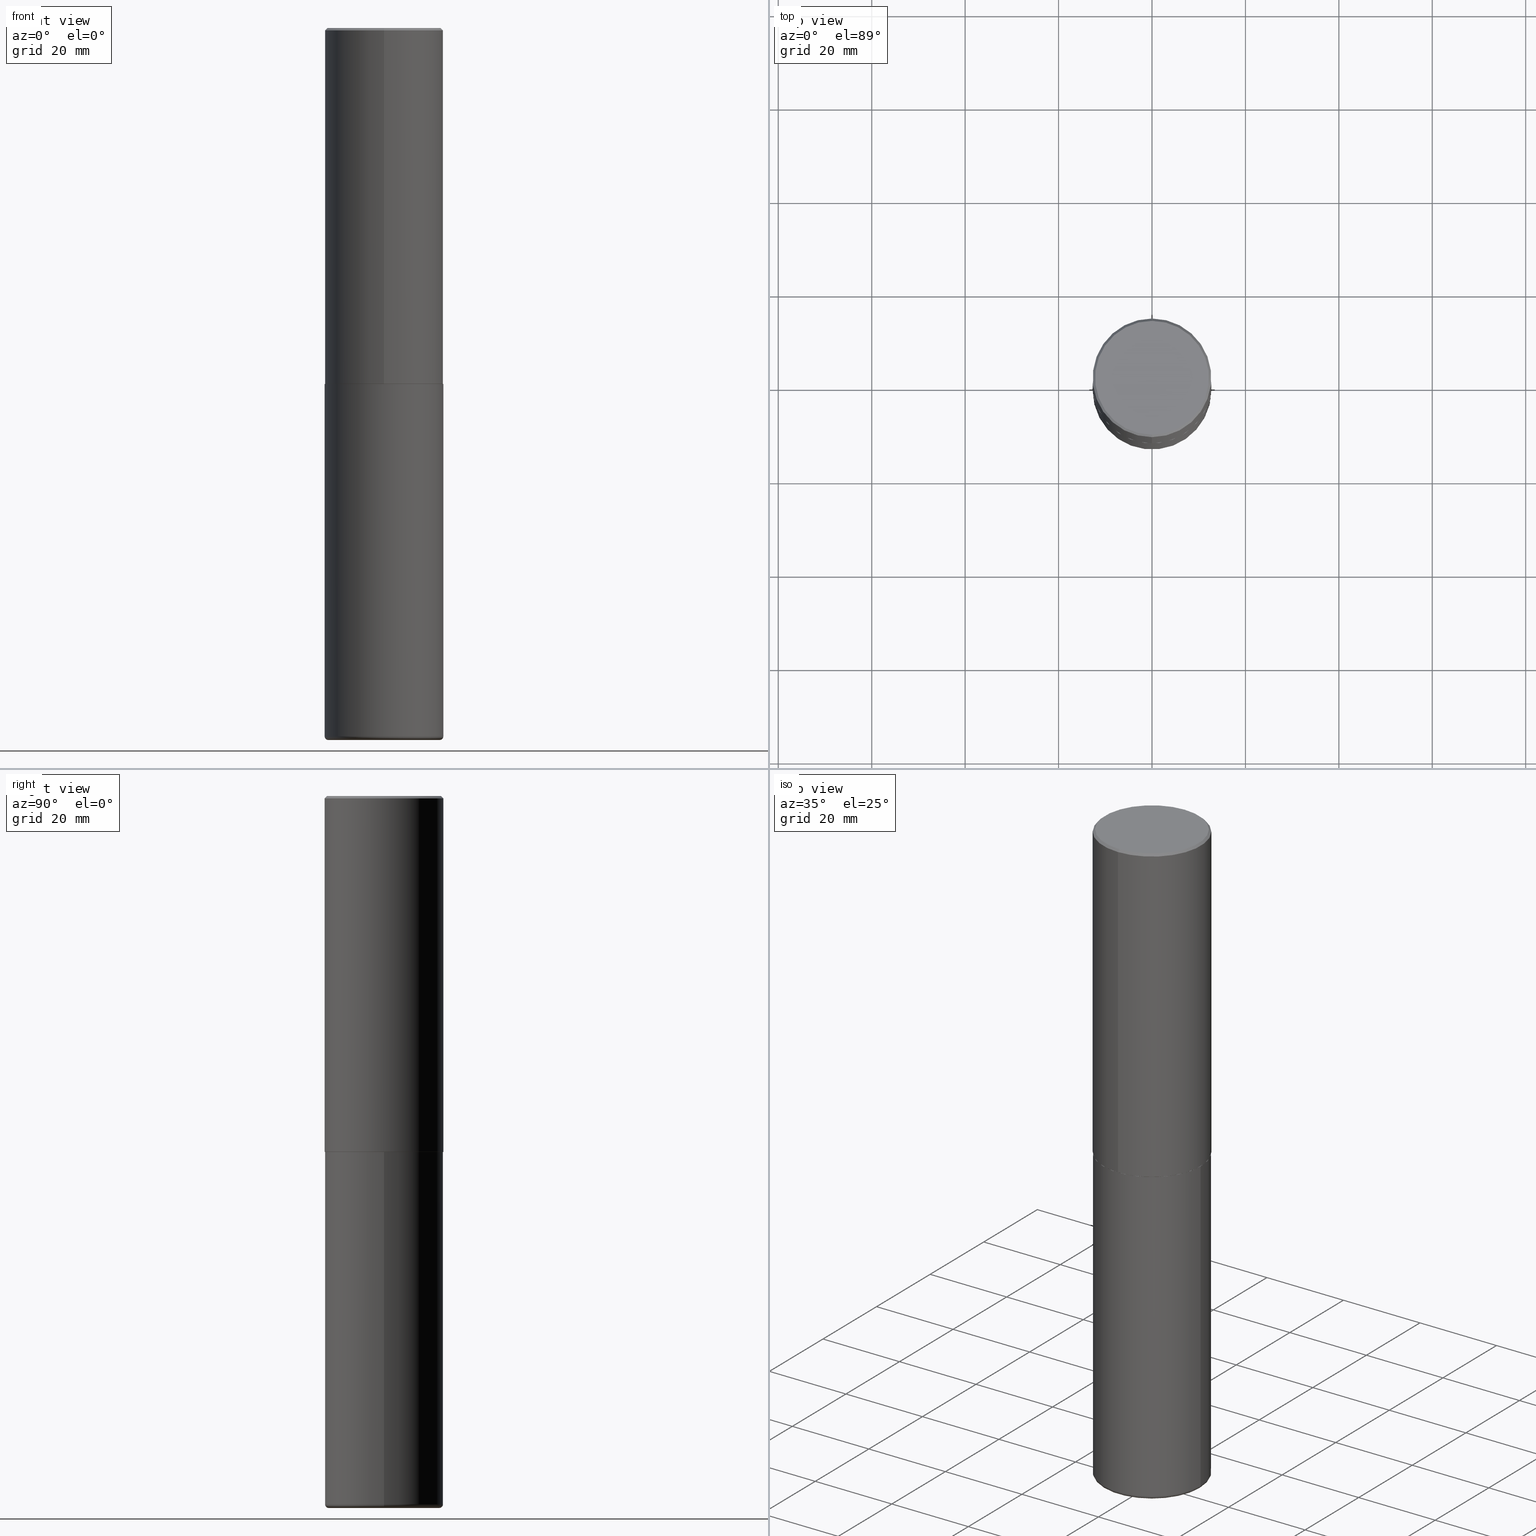
[diagram: canonical four-view strip — front | top / right | iso, engineering-drawing reading convention]
A machine part, canonical four-view strip (front | top / right | iso — engineering-drawing reading convention). The complete STEP part file that produces these views, byte-faithful:
ISO-10303-21;
HEADER;
FILE_DESCRIPTION (( 'STEP AP203' ),
    '1' );
FILE_NAME ('37709.STEP',
    '2024-03-02T08:50:55',
    ( '' ),
    ( '' ),
    'SwSTEP 2.0',
    'SolidWorks 2023',
    '' );
FILE_SCHEMA (( 'CONFIG_CONTROL_DESIGN' ));
ENDSEC;

DATA;
#1 = ORIENTED_EDGE ( 'NONE', *, *, #123, .T. ) ;
#2 = DIRECTION ( 'NONE',  ( -2.445468806185136877E-29, 3.491481338843145188E-15, 1.000000000000000000 ) ) ;
#3 = DIRECTION ( 'NONE',  ( -6.982962677686265922E-15, -1.000000000000000000, 3.284787166730577015E-15 ) ) ;
#4 = MANIFOLD_SOLID_BREP ( 'Body-Move/Copy2[1]', #148 ) ;
#5 = EDGE_LOOP ( 'NONE', ( #105, #1, #178, #216 ) ) ;
#6 = DIRECTION ( 'NONE',  ( -6.982962677686265922E-15, -1.000000000000000000, 3.492298717528625990E-15 ) ) ;
#7 =( LENGTH_UNIT ( ) NAMED_UNIT ( * ) SI_UNIT ( $, .METRE. ) );
#8 = APPROVAL ( #26, 'UNSPECIFIED' ) ;
#9 = DIRECTION ( 'NONE',  ( -4.851104656540946131E-15, -0.7071067811865473507, -0.7071067811865476838 ) ) ;
#10 = DIRECTION ( 'NONE',  ( 7.105427357601001859E-15, 1.000000000000000000, -3.491481338843145583E-15 ) ) ;
#11 = ORIENTED_EDGE ( 'NONE', *, *, #104, .T. ) ;
#12 = DIRECTION ( 'NONE',  ( 1.000000000000000000, -6.982962677686217012E-15, 0.000000000000000000 ) ) ;
#13 = DIRECTION ( 'NONE',  ( -2.444898033699712212E-29, 3.492298717528625990E-15, 1.000000000000000000 ) ) ;
#14 = ORIENTED_EDGE ( 'NONE', *, *, #104, .F. ) ;
#15 = DIRECTION ( 'NONE',  ( -6.982962677686266711E-15, -1.000000000000000000, 3.491481338843145583E-15 ) ) ;
#16 = DIRECTION ( 'NONE',  ( 1.000000000000000000, -6.982962677686268288E-15, 4.883557194083112901E-29 ) ) ;
#17 = ORIENTED_EDGE ( 'NONE', *, *, #353, .F. ) ;
#18 = CARTESIAN_POINT ( 'NONE',  ( 7.334694101099137475E-29, -1.047689615258587837E-14, -3.000000000000000444 ) ) ;
#19 = CARTESIAN_POINT ( 'NONE',  ( -0.5000000000000000000, -1.210658012591100613E-14, -3.000000000000000444 ) ) ;
#20 = AXIS2_PLACEMENT_3D ( 'NONE', #344, #46, #74 ) ;
#21 = ORIENTED_EDGE ( 'NONE', *, *, #207, .F. ) ;
#22 = ORIENTED_EDGE ( 'NONE', *, *, #166, .T. ) ;
#23 = DATE_TIME_ROLE ( 'classification_date' ) ;
#24 = CARTESIAN_POINT ( 'NONE',  ( -0.4699999999999999734, -1.745038354453973785E-14, -6.000000000000001776 ) ) ;
#25 = VERTEX_POINT ( 'NONE', #19 ) ;
#26 = APPROVAL_STATUS ( 'not_yet_approved' ) ;
#27 = ADVANCED_FACE ( 'NONE', ( #257 ), #262, .T. ) ;
#28 = AXIS2_PLACEMENT_3D ( 'NONE', #249, #122, #67 ) ;
#29 = AXIS2_PLACEMENT_3D ( 'NONE', #205, #350, #112 ) ;
#30 = EDGE_CURVE ( 'NONE', #198, #365, #266, .T. ) ;
#31 = DIRECTION ( 'NONE',  ( 2.444898033699712212E-29, -3.492298717528625990E-15, -1.000000000000000000 ) ) ;
#32 = DESIGN_CONTEXT ( 'detailed design', #114, 'design' ) ;
#33 = DIRECTION ( 'NONE',  ( -2.444898033699712212E-29, 3.492298717528625990E-15, 1.000000000000000000 ) ) ;
#34 = LINE ( 'NONE', #209, #109 ) ;
#35 = CIRCLE ( 'NONE', #359, 0.4799999999999999267 ) ;
#36 = CIRCLE ( 'NONE', #330, 0.03000000000000077258 ) ;
#37 = DIRECTION ( 'NONE',  ( -2.444898033699712212E-29, 3.492298717528625990E-15, 1.000000000000000000 ) ) ;
#38 = DIRECTION ( 'NONE',  ( -2.444898033699712212E-29, 3.492298717528625990E-15, 1.000000000000000000 ) ) ;
#39 = CC_DESIGN_PERSON_AND_ORGANIZATION_ASSIGNMENT ( #115, #272, ( #85 ) ) ;
#40 = CARTESIAN_POINT ( 'NONE',  ( 0.5000000000000000000, -1.396592535537257129E-14, -3.000000000000000444 ) ) ;
#41 = DIRECTION ( 'NONE',  ( -2.445468806185136597E-29, 3.491481338843145583E-15, 1.000000000000000000 ) ) ;
#42 = ADVANCED_FACE ( 'NONE', ( #73 ), #342, .T. ) ;
#43 = EDGE_LOOP ( 'NONE', ( #376, #130, #243, #303 ) ) ;
#44 = EDGE_LOOP ( 'NONE', ( #373, #402, #108, #150 ) ) ;
#45 = EDGE_CURVE ( 'NONE', #276, #225, #333, .T. ) ;
#46 = DIRECTION ( 'NONE',  ( 2.438088387897960049E-29, -3.491481338843145188E-15, -1.000000000000000000 ) ) ;
#47 = CARTESIAN_POINT ( 'NONE',  ( -3.491481338843133750E-15, -0.5000000000000001110, 1.746149358764313390E-15 ) ) ;
#48 = ORIENTED_EDGE ( 'NONE', *, *, #152, .T. ) ;
#49 = CARTESIAN_POINT ( 'NONE',  ( -3.491481338843061569E-15, -0.5000000000000107692, -2.998999999999998778 ) ) ;
#50 = DIRECTION ( 'NONE',  ( -2.444898033699711931E-29, 3.492298717528626385E-15, 1.000000000000000000 ) ) ;
#51 = ORIENTED_EDGE ( 'NONE', *, *, #366, .F. ) ;
#52 = DATE_AND_TIME ( #279, #189 ) ;
#53 = DIRECTION ( 'NONE',  ( -2.445468806185136597E-29, 3.491481338843145583E-15, 1.000000000000000000 ) ) ;
#54 = ORIENTED_EDGE ( 'NONE', *, *, #182, .T. ) ;
#55 = COORDINATED_UNIVERSAL_TIME_OFFSET ( 5, 0, .BEHIND. ) ;
#56 = AXIS2_PLACEMENT_3D ( 'NONE', #404, #378, #77 ) ;
#57 = DATE_TIME_ROLE ( 'creation_date' ) ;
#58 = CALENDAR_DATE ( 2024, 2, 3 ) ;
#59 = PRODUCT_DEFINITION ( 'UNKNOWN', '', #94, #32 ) ;
#60 = CIRCLE ( 'NONE', #121, 0.03000000000000077258 ) ;
#61 = APPROVAL_PERSON_ORGANIZATION ( #318, #289, #119 ) ;
#62 = FACE_OUTER_BOUND ( 'NONE', #312, .T. ) ;
#63 = CARTESIAN_POINT ( 'NONE',  ( 7.334694101099137475E-29, -1.047689615258587837E-14, -3.000000000000000444 ) ) ;
#64 = CYLINDRICAL_SURFACE ( 'NONE', #184, 0.5000000000000001110 ) ;
#65 = CIRCLE ( 'NONE', #298, 0.5000000000000000000 ) ;
#66 = CONICAL_SURFACE ( 'NONE', #90, 0.4989999999999999991, 0.7853981633976873100 ) ;
#67 = DIRECTION ( 'NONE',  ( -6.982962677686266711E-15, -1.000000000000000000, 3.278217592397114284E-15 ) ) ;
#68 = CARTESIAN_POINT ( 'NONE',  ( 0.000000000000000000, 0.000000000000000000, 0.000000000000000000 ) ) ;
#69 = ORIENTED_EDGE ( 'NONE', *, *, #96, .F. ) ;
#70 = LOCAL_TIME ( 3, 50, 55.00000000000000000, #55 ) ;
#71 = CARTESIAN_POINT ( 'NONE',  ( 7.336406418555409790E-29, -1.047444401652943635E-14, -3.000000000000000444 ) ) ;
#72 = ADVANCED_BREP_SHAPE_REPRESENTATION ( '37709', ( #4, #263, #29 ), #213 ) ;
#73 = FACE_OUTER_BOUND ( 'NONE', #44, .T. ) ;
#74 = DIRECTION ( 'NONE',  ( -1.000000000000000000, 6.982962677686265922E-15, -4.876176775795935793E-29 ) ) ;
#75 = ADVANCED_FACE ( 'NONE', ( #375 ), #323, .T. ) ;
#76 = VERTEX_POINT ( 'NONE', #132 ) ;
#77 = DIRECTION ( 'NONE',  ( 1.000000000000000000, -6.982962677686262766E-15, 0.000000000000000000 ) ) ;
#78 = TOROIDAL_SURFACE ( 'NONE', #86, 0.4699999999999999734, 0.03000000000000077258 ) ;
#79 = CARTESIAN_POINT ( 'NONE',  ( -3.430248998885764992E-15, -0.5000000000000001110, -0.01999999999999835937 ) ) ;
#80 = CIRCLE ( 'NONE', #310, 0.5000000000000000000 ) ;
#81 = DIRECTION ( 'NONE',  ( -6.982962677686265922E-15, -1.000000000000000000, 3.284787166730577015E-15 ) ) ;
#82 = PERSON_AND_ORGANIZATION_ROLE ( 'design_supplier' ) ;
#83 = EDGE_LOOP ( 'NONE', ( #315, #195, #273, #153 ) ) ;
#84 = CC_DESIGN_PERSON_AND_ORGANIZATION_ASSIGNMENT ( #236, #354, ( #94 ) ) ;
#85 = PRODUCT ( '37709', '37709', '', ( #390 ) ) ;
#86 = AXIS2_PLACEMENT_3D ( 'NONE', #332, #41, #294 ) ;
#87 = COORDINATED_UNIVERSAL_TIME_OFFSET ( 5, 0, .BEHIND. ) ;
#88 = CALENDAR_DATE ( 2024, 2, 3 ) ;
#89 = DIRECTION ( 'NONE',  ( 2.444898033699712212E-29, -3.492298717528625990E-15, -1.000000000000000000 ) ) ;
#90 = AXIS2_PLACEMENT_3D ( 'NONE', #63, #245, #210 ) ;
#91 = CARTESIAN_POINT ( 'NONE',  ( -3.430248998885764992E-15, -0.5000000000000001110, -0.01999999999999835937 ) ) ;
#92 = ADVANCED_FACE ( 'NONE', ( #107 ), #309, .T. ) ;
#93 = ORIENTED_EDGE ( 'NONE', *, *, #180, .T. ) ;
#94 = PRODUCT_DEFINITION_FORMATION_WITH_SPECIFIED_SOURCE ( 'ANY', '', #85, .NOT_KNOWN. ) ;
#95 = DIRECTION ( 'NONE',  ( -2.444898033699712212E-29, 3.492298717528625990E-15, 1.000000000000000000 ) ) ;
#96 = EDGE_CURVE ( 'NONE', #198, #218, #316, .T. ) ;
#97 = FACE_OUTER_BOUND ( 'NONE', #300, .T. ) ;
#98 = DIRECTION ( 'NONE',  ( 1.000000000000000000, -6.982962677686263555E-15, 0.000000000000000000 ) ) ;
#99 = CIRCLE ( 'NONE', #288, 0.5000000000000000000 ) ;
#100 = DIRECTION ( 'NONE',  ( 4.937700262164529898E-15, 0.7071067811865424657, -0.7071067811865525687 ) ) ;
#101 = EDGE_CURVE ( 'NONE', #167, #281, #35, .T. ) ;
#102 = FACE_OUTER_BOUND ( 'NONE', #408, .T. ) ;
#103 = DIRECTION ( 'NONE',  ( -4.937700262165728178E-15, -0.7071067811867141062, 0.7071067811863809283 ) ) ;
#104 = EDGE_CURVE ( 'NONE', #218, #276, #292, .T. ) ;
#105 = ORIENTED_EDGE ( 'NONE', *, *, #146, .T. ) ;
#106 = LINE ( 'NONE', #328, #364 ) ;
#107 = FACE_OUTER_BOUND ( 'NONE', #357, .T. ) ;
#108 = ORIENTED_EDGE ( 'NONE', *, *, #366, .T. ) ;
#109 = VECTOR ( 'NONE', #2, 39.37007874015748143 ) ;
#110 = AXIS2_PLACEMENT_3D ( 'NONE', #368, #374, #98 ) ;
#111 = ADVANCED_FACE ( 'NONE', ( #129 ), #78, .T. ) ;
#112 = DIRECTION ( 'NONE',  ( 1.000000000000000000, 0.000000000000000000, 0.000000000000000000 ) ) ;
#113 = ORIENTED_EDGE ( 'NONE', *, *, #180, .F. ) ;
#114 = APPLICATION_CONTEXT ( 'configuration controlled 3d designs of mechanical parts and assemblies' ) ;
#115 = PERSON_AND_ORGANIZATION ( #321, #171 ) ;
#116 = APPROVAL_ROLE ( '' ) ;
#117 = CIRCLE ( 'NONE', #278, 0.4989999999999999991 ) ;
#118 = AXIS2_PLACEMENT_3D ( 'NONE', #324, #31, #151 ) ;
#119 = APPROVAL_ROLE ( '' ) ;
#120 = CARTESIAN_POINT ( 'NONE',  ( 7.336406418555409790E-29, -1.047444401652943635E-14, -3.000000000000000444 ) ) ;
#121 = AXIS2_PLACEMENT_3D ( 'NONE', #261, #10, #255 ) ;
#122 = DIRECTION ( 'NONE',  ( -2.444898033699712212E-29, 3.492298717528625990E-15, 1.000000000000000000 ) ) ;
#123 = EDGE_CURVE ( 'NONE', #161, #271, #60, .T. ) ;
#124 = FACE_OUTER_BOUND ( 'NONE', #43, .T. ) ;
#125 = FACE_OUTER_BOUND ( 'NONE', #412, .T. ) ;
#126 = CLOSED_SHELL ( 'NONE', ( #241, #227, #274, #211, #196, #92, #338, #356 ) ) ;
#127 = ORIENTED_EDGE ( 'NONE', *, *, #45, .T. ) ;
#128 = PLANE ( 'NONE',  #20 ) ;
#129 = FACE_OUTER_BOUND ( 'NONE', #305, .T. ) ;
#130 = ORIENTED_EDGE ( 'NONE', *, *, #182, .F. ) ;
#131 = CARTESIAN_POINT ( 'NONE',  ( 3.351822085289407153E-15, 0.4799999999999999267, -1.624885063648019971E-15 ) ) ;
#132 = CARTESIAN_POINT ( 'NONE',  ( 3.491481338843133355E-15, 0.4999999999999999445, -0.02000000000000185310 ) ) ;
#133 = ORIENTED_EDGE ( 'NONE', *, *, #101, .T. ) ;
#134 = CARTESIAN_POINT ( 'NONE',  ( 3.552713678800539584E-15, 0.4999999999999898970, -2.999000000000001886 ) ) ;
#135 = ORIENTED_EDGE ( 'NONE', *, *, #282, .F. ) ;
#136 = VECTOR ( 'NONE', #50, 39.37007874015748143 ) ;
#137 = PERSON_AND_ORGANIZATION_ROLE ( 'classification_officer' ) ;
#138 = AXIS2_PLACEMENT_3D ( 'NONE', #71, #336, #377 ) ;
#139 = ORIENTED_EDGE ( 'NONE', *, *, #207, .T. ) ;
#140 = APPLICATION_PROTOCOL_DEFINITION ( 'international standard', 'config_control_design', 1994, #114 ) ;
#141 = DATE_AND_TIME ( #58, #70 ) ;
#142 = UNCERTAINTY_MEASURE_WITH_UNIT (LENGTH_MEASURE( 1.000000000000000082E-05 ), #190, 'distance_accuracy_value', 'NONE');
#143 = PERSON_AND_ORGANIZATION ( #321, #171 ) ;
#144 = CC_DESIGN_APPROVAL ( #8, ( #341 ) ) ;
#145 = FACE_OUTER_BOUND ( 'NONE', #204, .T. ) ;
#146 = EDGE_CURVE ( 'NONE', #192, #161, #169, .T. ) ;
#147 = DIRECTION ( 'NONE',  ( -6.982962677686266711E-15, -1.000000000000000000, 3.278217592397114284E-15 ) ) ;
#148 = CLOSED_SHELL ( 'NONE', ( #27, #75, #415, #42, #111, #296 ) ) ;
#149 = AXIS2_PLACEMENT_3D ( 'NONE', #131, #160, #370 ) ;
#150 = ORIENTED_EDGE ( 'NONE', *, *, #251, .F. ) ;
#151 = DIRECTION ( 'NONE',  ( 6.982962677686265922E-15, 1.000000000000000000, -3.491643216902136408E-15 ) ) ;
#152 = EDGE_CURVE ( 'NONE', #346, #25, #287, .T. ) ;
#153 = ORIENTED_EDGE ( 'NONE', *, *, #387, .F. ) ;
#154 = DIRECTION ( 'NONE',  ( -2.444898033699712212E-29, 3.492298717528625990E-15, 1.000000000000000000 ) ) ;
#155 = LOCAL_TIME ( 3, 50, 55.00000000000000000, #385 ) ;
#156 = DIRECTION ( 'NONE',  ( -2.445468806185136597E-29, 3.491481338843145583E-15, 1.000000000000000000 ) ) ;
#157 = DIRECTION ( 'NONE',  ( -6.982962677686265922E-15, -1.000000000000000000, 3.492298717528625990E-15 ) ) ;
#158 = ORIENTED_EDGE ( 'NONE', *, *, #334, .F. ) ;
#159 = EDGE_CURVE ( 'NONE', #225, #76, #65, .T. ) ;
#160 = DIRECTION ( 'NONE',  ( 2.444898033699711371E-29, -3.492298717528626385E-15, -1.000000000000000000 ) ) ;
#161 = VERTEX_POINT ( 'NONE', #24 ) ;
#162 = PLANE ( 'NONE',  #202 ) ;
#163 = CARTESIAN_POINT ( 'NONE',  ( 1.459944877292526494E-28, -2.084414359289357934E-14, -5.969999999999999751 ) ) ;
#164 = ORIENTED_EDGE ( 'NONE', *, *, #152, .F. ) ;
#165 = CARTESIAN_POINT ( 'NONE',  ( 0.5000000000000003331, -2.433562493173670954E-14, -5.969999999999999751 ) ) ;
#166 = EDGE_CURVE ( 'NONE', #271, #25, #34, .T. ) ;
#167 = VERTEX_POINT ( 'NONE', #286 ) ;
#168 = DIRECTION ( 'NONE',  ( -2.445468806185136597E-29, 3.491481338843145583E-15, 1.000000000000000000 ) ) ;
#169 = CIRCLE ( 'NONE', #56, 0.4699999999999999734 ) ;
#170 = COORDINATED_UNIVERSAL_TIME_OFFSET ( 5, 0, .BEHIND. ) ;
#171 = ORGANIZATION ( 'UNSPECIFIED', 'UNSPECIFIED', '' ) ;
#172 = DATE_AND_TIME ( #88, #185 ) ;
#173 = DIRECTION ( 'NONE',  ( -6.982962677686265922E-15, -1.000000000000000000, 3.491643216902136408E-15 ) ) ;
#174 = CC_DESIGN_PERSON_AND_ORGANIZATION_ASSIGNMENT ( #143, #235, ( #59 ) ) ;
#175 = ORIENTED_EDGE ( 'NONE', *, *, #159, .F. ) ;
#176 = AXIS2_PLACEMENT_3D ( 'NONE', #337, #345, #191 ) ;
#177 = VECTOR ( 'NONE', #100, 39.37007874015748143 ) ;
#178 = ORIENTED_EDGE ( 'NONE', *, *, #407, .F. ) ;
#179 = CARTESIAN_POINT ( 'NONE',  ( -2.514251026725007597E-45, 3.591362713352002573E-31, 1.028366415314403880E-16 ) ) ;
#180 = EDGE_CURVE ( 'NONE', #365, #276, #201, .T. ) ;
#181 = DIRECTION ( 'NONE',  ( 1.000000000000000000, -6.982962677686266711E-15, 0.000000000000000000 ) ) ;
#182 = EDGE_CURVE ( 'NONE', #281, #167, #269, .T. ) ;
#183 = CYLINDRICAL_SURFACE ( 'NONE', #270, 0.5000000000000001110 ) ;
#184 = AXIS2_PLACEMENT_3D ( 'NONE', #68, #395, #360 ) ;
#185 = LOCAL_TIME ( 3, 50, 55.00000000000000000, #347 ) ;
#186 = CARTESIAN_POINT ( 'NONE',  ( 3.549160965121773789E-15, 0.4989999999999895630, -3.000000000000001776 ) ) ;
#187 = DIRECTION ( 'NONE',  ( -6.982962677686265922E-15, -1.000000000000000000, 3.492298717528625990E-15 ) ) ;
#188 = CARTESIAN_POINT ( 'NONE',  ( 3.421651712066270057E-15, 0.4799999999999999267, -1.573466742882299844E-15 ) ) ;
#189 = LOCAL_TIME ( 3, 50, 55.00000000000000000, #87 ) ;
#190 =( CONVERSION_BASED_UNIT ( 'INCH', #252 ) LENGTH_UNIT ( ) NAMED_UNIT ( #224 ) );
#191 = DIRECTION ( 'NONE',  ( 1.000000000000000000, -6.982962677686266711E-15, 4.876176775795935793E-29 ) ) ;
#192 = VERTEX_POINT ( 'NONE', #246 ) ;
#193 = DIRECTION ( 'NONE',  ( -2.444898033699711371E-29, 3.492298717528626385E-15, 1.000000000000000000 ) ) ;
#194 = CARTESIAN_POINT ( 'NONE',  ( -2.514251026725007597E-45, 3.591362713352002573E-31, 1.028366415314403880E-16 ) ) ;
#195 = ORIENTED_EDGE ( 'NONE', *, *, #348, .T. ) ;
#196 = ADVANCED_FACE ( 'NONE', ( #145 ), #64, .T. ) ;
#197 = FACE_OUTER_BOUND ( 'NONE', #228, .T. ) ;
#198 = VERTEX_POINT ( 'NONE', #186 ) ;
#199 = APPLICATION_PROTOCOL_DEFINITION ( 'international standard', 'config_control_design', 1994, #200 ) ;
#200 = APPLICATION_CONTEXT ( 'configuration controlled 3d designs of mechanical parts and assemblies' ) ;
#201 = CIRCLE ( 'NONE', #28, 0.5000000000000002220 ) ;
#202 = AXIS2_PLACEMENT_3D ( 'NONE', #18, #193, #291 ) ;
#203 = CALENDAR_DATE ( 2024, 2, 3 ) ;
#204 = EDGE_LOOP ( 'NONE', ( #158, #93, #127, #17 ) ) ;
#205 = CARTESIAN_POINT ( 'NONE',  ( 0.000000000000000000, 0.000000000000000000, 0.000000000000000000 ) ) ;
#206 = APPROVAL_DATE_TIME ( #52, #8 ) ;
#207 = EDGE_CURVE ( 'NONE', #276, #365, #254, .T. ) ;
#208 = CONICAL_SURFACE ( 'NONE', #118, 0.5000000000000000000, 0.7853981633974446153 ) ;
#209 = CARTESIAN_POINT ( 'NONE',  ( -0.5000000000000000000, 3.552713678800500929E-15, -2.459467545127452891E-29 ) ) ;
#210 = DIRECTION ( 'NONE',  ( -6.982962677686265922E-15, -1.000000000000000000, 3.284787166730577015E-15 ) ) ;
#211 = ADVANCED_FACE ( 'NONE', ( #124 ), #363, .T. ) ;
#212 = AXIS2_PLACEMENT_3D ( 'NONE', #319, #89, #285 ) ;
#213 =( GEOMETRIC_REPRESENTATION_CONTEXT ( 3 ) GLOBAL_UNCERTAINTY_ASSIGNED_CONTEXT ( ( #142 ) ) GLOBAL_UNIT_ASSIGNED_CONTEXT ( ( #190, #297, #358 ) ) REPRESENTATION_CONTEXT ( 'NONE', 'WORKASPACE' ) );
#214 = ORIENTED_EDGE ( 'NONE', *, *, #30, .T. ) ;
#215 = FACE_OUTER_BOUND ( 'NONE', #267, .T. ) ;
#216 = ORIENTED_EDGE ( 'NONE', *, *, #280, .F. ) ;
#217 = CARTESIAN_POINT ( 'NONE',  ( 1.459944877292526494E-28, -2.084414359289357934E-14, -5.969999999999999751 ) ) ;
#218 = VERTEX_POINT ( 'NONE', #248 ) ;
#219 = EDGE_CURVE ( 'NONE', #218, #198, #117, .T. ) ;
#220 = DIRECTION ( 'NONE',  ( 1.000000000000000000, -6.982962677686262766E-15, 0.000000000000000000 ) ) ;
#221 = VECTOR ( 'NONE', #103, 39.37007874015748143 ) ;
#222 = CARTESIAN_POINT ( 'NONE',  ( -3.484498376165373188E-15, -0.4990000000000104352, -2.999999999999998668 ) ) ;
#223 = CC_DESIGN_SECURITY_CLASSIFICATION ( #341, ( #94 ) ) ;
#224 = DIMENSIONAL_EXPONENTS ( 1.000000000000000000, 0.000000000000000000, 0.000000000000000000, 0.000000000000000000, 0.000000000000000000, 0.000000000000000000, 0.000000000000000000 ) ;
#225 = VERTEX_POINT ( 'NONE', #91 ) ;
#226 = PLANE ( 'NONE',  #138 ) ;
#227 = ADVANCED_FACE ( 'NONE', ( #215 ), #183, .T. ) ;
#228 = EDGE_LOOP ( 'NONE', ( #48, #380 ) ) ;
#229 = DIRECTION ( 'NONE',  ( -6.982962677686265922E-15, -1.000000000000000000, 3.491643216902136408E-15 ) ) ;
#230 = CARTESIAN_POINT ( 'NONE',  ( 7.334694101099137475E-29, -1.047689615258587837E-14, -3.000000000000000444 ) ) ;
#231 = VECTOR ( 'NONE', #307, 39.37007874015748143 ) ;
#232 = APPROVAL_PERSON_ORGANIZATION ( #384, #247, #240 ) ;
#233 = PERSON_AND_ORGANIZATION ( #321, #171 ) ;
#234 = DIRECTION ( 'NONE',  ( 1.000000000000000000, -6.982962677686266711E-15, 4.876176775795935793E-29 ) ) ;
#235 = PERSON_AND_ORGANIZATION_ROLE ( 'creator' ) ;
#236 = PERSON_AND_ORGANIZATION ( #321, #171 ) ;
#237 = AXIS2_PLACEMENT_3D ( 'NONE', #397, #33, #147 ) ;
#238 = CC_DESIGN_APPROVAL ( #289, ( #94 ) ) ;
#239 = APPROVAL_STATUS ( 'not_yet_approved' ) ;
#240 = APPROVAL_ROLE ( '' ) ;
#241 = ADVANCED_FACE ( 'NONE', ( #62 ), #66, .T. ) ;
#242 = ORIENTED_EDGE ( 'NONE', *, *, #45, .F. ) ;
#243 = ORIENTED_EDGE ( 'NONE', *, *, #387, .T. ) ;
#244 = AXIS2_PLACEMENT_3D ( 'NONE', #217, #156, #381 ) ;
#245 = DIRECTION ( 'NONE',  ( -2.444898033699712212E-29, 3.492298717528625990E-15, 1.000000000000000000 ) ) ;
#246 = CARTESIAN_POINT ( 'NONE',  ( 0.4699999999999999734, -2.423088049157142248E-14, -6.000000000000001776 ) ) ;
#247 = APPROVAL ( #275, 'UNSPECIFIED' ) ;
#248 = CARTESIAN_POINT ( 'NONE',  ( -3.484498376165373188E-15, -0.4990000000000104352, -2.999999999999998668 ) ) ;
#249 = CARTESIAN_POINT ( 'NONE',  ( 7.332249203065438921E-29, -1.047340385386834930E-14, -2.999000000000000554 ) ) ;
#250 = CARTESIAN_POINT ( 'NONE',  ( 7.334694101099137475E-29, -1.047689615258587837E-14, -3.000000000000000444 ) ) ;
#251 = EDGE_CURVE ( 'NONE', #25, #346, #80, .T. ) ;
#252 = LENGTH_MEASURE_WITH_UNIT ( LENGTH_MEASURE( 0.02539999999999999897 ), #7 );
#253 = LINE ( 'NONE', #401, #177 ) ;
#254 = CIRCLE ( 'NONE', #237, 0.5000000000000002220 ) ;
#255 = DIRECTION ( 'NONE',  ( -1.000000000000000000, 7.105427357601001859E-15, 0.000000000000000000 ) ) ;
#256 = CIRCLE ( 'NONE', #244, 0.4999999999999999445 ) ;
#257 = FACE_OUTER_BOUND ( 'NONE', #258, .T. ) ;
#258 = EDGE_LOOP ( 'NONE', ( #325, #22, #164, #51 ) ) ;
#259 = PLANE ( 'NONE',  #149 ) ;
#260 = CC_DESIGN_PERSON_AND_ORGANIZATION_ASSIGNMENT ( #233, #137, ( #341 ) ) ;
#261 = CARTESIAN_POINT ( 'NONE',  ( -0.4699999999999999734, -1.750459273482110708E-14, -5.969999999999999751 ) ) ;
#262 = CYLINDRICAL_SURFACE ( 'NONE', #329, 0.5000000000000000000 ) ;
#263 = MANIFOLD_SOLID_BREP ( 'Body-Move/Copy2[2]', #126 ) ;
#264 = ORIENTED_EDGE ( 'NONE', *, *, #280, .T. ) ;
#265 = DIRECTION ( 'NONE',  ( -2.444898033699711931E-29, 3.492298717528626385E-15, 1.000000000000000000 ) ) ;
#266 = LINE ( 'NONE', #299, #231 ) ;
#267 = EDGE_LOOP ( 'NONE', ( #139, #339, #175, #242 ) ) ;
#268 = APPROVAL_DATE_TIME ( #392, #289 ) ;
#269 = CIRCLE ( 'NONE', #416, 0.4799999999999999267 ) ;
#270 = AXIS2_PLACEMENT_3D ( 'NONE', #367, #154, #187 ) ;
#271 = VERTEX_POINT ( 'NONE', #320 ) ;
#272 = PERSON_AND_ORGANIZATION_ROLE ( 'design_owner' ) ;
#273 = ORIENTED_EDGE ( 'NONE', *, *, #159, .T. ) ;
#274 = ADVANCED_FACE ( 'NONE', ( #396 ), #208, .T. ) ;
#275 = APPROVAL_STATUS ( 'not_yet_approved' ) ;
#276 = VERTEX_POINT ( 'NONE', #49 ) ;
#277 = CALENDAR_DATE ( 2024, 2, 3 ) ;
#278 = AXIS2_PLACEMENT_3D ( 'NONE', #284, #95, #3 ) ;
#279 = CALENDAR_DATE ( 2024, 2, 3 ) ;
#280 = EDGE_CURVE ( 'NONE', #192, #322, #36, .T. ) ;
#281 = VERTEX_POINT ( 'NONE', #188 ) ;
#282 = EDGE_CURVE ( 'NONE', #161, #192, #317, .T. ) ;
#283 = PRODUCT_RELATED_PRODUCT_CATEGORY ( 'detail', '', ( #85 ) ) ;
#284 = CARTESIAN_POINT ( 'NONE',  ( 7.334694101099137475E-29, -1.047689615258587837E-14, -3.000000000000000444 ) ) ;
#285 = DIRECTION ( 'NONE',  ( 6.982962677686265922E-15, 1.000000000000000000, -3.491643216902136408E-15 ) ) ;
#286 = CARTESIAN_POINT ( 'NONE',  ( -3.361644018908049661E-15, -0.4799999999999999267, 1.779140025945180744E-15 ) ) ;
#287 = CIRCLE ( 'NONE', #351, 0.5000000000000000000 ) ;
#288 = AXIS2_PLACEMENT_3D ( 'NONE', #400, #37, #229 ) ;
#289 = APPROVAL ( #239, 'UNSPECIFIED' ) ;
#290 = PRODUCT_DEFINITION_SHAPE ( 'NONE', 'NONE',  #59 ) ;
#291 = DIRECTION ( 'NONE',  ( -6.982962677686265922E-15, -1.000000000000000000, 3.492298717528626385E-15 ) ) ;
#292 = LINE ( 'NONE', #222, #221 ) ;
#293 = CARTESIAN_POINT ( 'NONE',  ( 0.5000000000000000000, -3.491481338843133355E-15, 2.438088387897967896E-29 ) ) ;
#294 = DIRECTION ( 'NONE',  ( 1.000000000000000000, -6.982962677686268288E-15, 4.883557194083112901E-29 ) ) ;
#295 = ORIENTED_EDGE ( 'NONE', *, *, #96, .T. ) ;
#296 = ADVANCED_FACE ( 'NONE', ( #125 ), #128, .T. ) ;
#297 =( NAMED_UNIT ( * ) PLANE_ANGLE_UNIT ( ) SI_UNIT ( $, .RADIAN. ) );
#298 = AXIS2_PLACEMENT_3D ( 'NONE', #391, #355, #173 ) ;
#299 = CARTESIAN_POINT ( 'NONE',  ( 3.545608251442972496E-15, 0.4989999999999895630, -3.000000000000001776 ) ) ;
#300 = EDGE_LOOP ( 'NONE', ( #54, #133 ) ) ;
#301 = CARTESIAN_POINT ( 'NONE',  ( 0.4699999999999999734, -2.412613605140612280E-14, -5.969999999999999751 ) ) ;
#302 = DIRECTION ( 'NONE',  ( -2.445468806185136597E-29, 3.491481338843145583E-15, 1.000000000000000000 ) ) ;
#303 = ORIENTED_EDGE ( 'NONE', *, *, #353, .T. ) ;
#304 = DIRECTION ( 'NONE',  ( -2.444898033699712212E-29, 3.492298717528625990E-15, 1.000000000000000000 ) ) ;
#305 = EDGE_LOOP ( 'NONE', ( #411, #335, #264, #343 ) ) ;
#306 = AXIS2_PLACEMENT_3D ( 'NONE', #163, #302, #16 ) ;
#307 = DIRECTION ( 'NONE',  ( 5.024295867789263036E-15, 0.7071067811867189912, 0.7071067811863760433 ) ) ;
#308 = CC_DESIGN_DATE_AND_TIME_ASSIGNMENT ( #172, #23, ( #341 ) ) ;
#309 = CONICAL_SURFACE ( 'NONE', #369, 0.4989999999999999991, 0.7853981633976873100 ) ;
#310 = AXIS2_PLACEMENT_3D ( 'NONE', #362, #361, #181 ) ;
#311 = ORIENTED_EDGE ( 'NONE', *, *, #146, .F. ) ;
#312 = EDGE_LOOP ( 'NONE', ( #349, #214, #21, #14 ) ) ;
#313 = DIRECTION ( 'NONE',  ( 1.000000000000000000, -6.982962677686266711E-15, 0.000000000000000000 ) ) ;
#314 = DATE_AND_TIME ( #277, #155 ) ;
#315 = ORIENTED_EDGE ( 'NONE', *, *, #101, .F. ) ;
#316 = CIRCLE ( 'NONE', #388, 0.4989999999999999991 ) ;
#317 = CIRCLE ( 'NONE', #352, 0.4699999999999999734 ) ;
#318 = PERSON_AND_ORGANIZATION ( #321, #171 ) ;
#319 = CARTESIAN_POINT ( 'NONE',  ( 4.889796067399450837E-31, -6.984597435057287381E-17, -0.02000000000000010797 ) ) ;
#320 = CARTESIAN_POINT ( 'NONE',  ( -0.5000000000000003331, -1.729142991409307210E-14, -5.969999999999999751 ) ) ;
#321 = PERSON ( 'UNSPECIFIED', 'UNSPECIFIED', 'UNSPECIFIED', ('UNSPECIFIED'), ('UNSPECIFIED'), ('UNSPECIFIED') ) ;
#322 = VERTEX_POINT ( 'NONE', #165 ) ;
#323 = TOROIDAL_SURFACE ( 'NONE', #306, 0.4699999999999999734, 0.03000000000000077258 ) ;
#324 = CARTESIAN_POINT ( 'NONE',  ( 4.889796067399450837E-31, -6.984597435057287381E-17, -0.02000000000000010797 ) ) ;
#325 = ORIENTED_EDGE ( 'NONE', *, *, #407, .T. ) ;
#326 = DIRECTION ( 'NONE',  ( -2.444898033699712212E-29, 3.492298717528625990E-15, 1.000000000000000000 ) ) ;
#327 = ORIENTED_EDGE ( 'NONE', *, *, #219, .F. ) ;
#328 = CARTESIAN_POINT ( 'NONE',  ( 3.552713678800501718E-15, 0.5000000000000001110, -1.746149358764313390E-15 ) ) ;
#329 = AXIS2_PLACEMENT_3D ( 'NONE', #382, #168, #234 ) ;
#330 = AXIS2_PLACEMENT_3D ( 'NONE', #301, #15, #12 ) ;
#331 = DIRECTION ( 'NONE',  ( -2.445468806185136597E-29, 3.491481338843145583E-15, 1.000000000000000000 ) ) ;
#332 = CARTESIAN_POINT ( 'NONE',  ( 1.459944877292526494E-28, -2.084414359289357934E-14, -5.969999999999999751 ) ) ;
#333 = LINE ( 'NONE', #47, #136 ) ;
#334 = EDGE_CURVE ( 'NONE', #365, #76, #106, .T. ) ;
#335 = ORIENTED_EDGE ( 'NONE', *, *, #282, .T. ) ;
#336 = DIRECTION ( 'NONE',  ( 2.438088387897960049E-29, -3.491481338843145188E-15, -1.000000000000000000 ) ) ;
#337 = CARTESIAN_POINT ( 'NONE',  ( 0.000000000000000000, 0.000000000000000000, 0.000000000000000000 ) ) ;
#338 = ADVANCED_FACE ( 'NONE', ( #102 ), #162, .F. ) ;
#339 = ORIENTED_EDGE ( 'NONE', *, *, #334, .T. ) ;
#340 = CARTESIAN_POINT ( 'NONE',  ( 1.467281283711082406E-28, -2.094888803305887902E-14, -6.000000000000001776 ) ) ;
#341 = SECURITY_CLASSIFICATION ( '', '', #386 ) ;
#342 = CYLINDRICAL_SURFACE ( 'NONE', #176, 0.5000000000000000000 ) ;
#343 = ORIENTED_EDGE ( 'NONE', *, *, #383, .F. ) ;
#344 = CARTESIAN_POINT ( 'NONE',  ( 4.931676200070994304E-29, -3.489875012836576194E-14, -6.000000000000001776 ) ) ;
#345 = DIRECTION ( 'NONE',  ( -2.445468806185136597E-29, 3.491481338843145583E-15, 1.000000000000000000 ) ) ;
#346 = VERTEX_POINT ( 'NONE', #40 ) ;
#347 = COORDINATED_UNIVERSAL_TIME_OFFSET ( 5, 0, .BEHIND. ) ;
#348 = EDGE_CURVE ( 'NONE', #167, #225, #403, .T. ) ;
#349 = ORIENTED_EDGE ( 'NONE', *, *, #219, .T. ) ;
#350 = DIRECTION ( 'NONE',  ( 0.000000000000000000, 0.000000000000000000, 1.000000000000000000 ) ) ;
#351 = AXIS2_PLACEMENT_3D ( 'NONE', #120, #53, #313 ) ;
#352 = AXIS2_PLACEMENT_3D ( 'NONE', #340, #331, #220 ) ;
#353 = EDGE_CURVE ( 'NONE', #76, #225, #99, .T. ) ;
#354 = PERSON_AND_ORGANIZATION_ROLE ( 'creator' ) ;
#355 = DIRECTION ( 'NONE',  ( -2.444898033699712212E-29, 3.492298717528625990E-15, 1.000000000000000000 ) ) ;
#356 = ADVANCED_FACE ( 'NONE', ( #97 ), #259, .F. ) ;
#357 = EDGE_LOOP ( 'NONE', ( #379, #295, #11, #113 ) ) ;
#358 =( NAMED_UNIT ( * ) SI_UNIT ( $, .STERADIAN. ) SOLID_ANGLE_UNIT ( ) );
#359 = AXIS2_PLACEMENT_3D ( 'NONE', #194, #304, #157 ) ;
#360 = DIRECTION ( 'NONE',  ( -6.982962677686265922E-15, -1.000000000000000000, 3.492298717528625990E-15 ) ) ;
#361 = DIRECTION ( 'NONE',  ( -2.445468806185136597E-29, 3.491481338843145583E-15, 1.000000000000000000 ) ) ;
#362 = CARTESIAN_POINT ( 'NONE',  ( 7.336406418555409790E-29, -1.047444401652943635E-14, -3.000000000000000444 ) ) ;
#363 = CONICAL_SURFACE ( 'NONE', #212, 0.5000000000000000000, 0.7853981633974446153 ) ;
#364 = VECTOR ( 'NONE', #265, 39.37007874015748143 ) ;
#365 = VERTEX_POINT ( 'NONE', #134 ) ;
#366 = EDGE_CURVE ( 'NONE', #322, #346, #405, .T. ) ;
#367 = CARTESIAN_POINT ( 'NONE',  ( 0.000000000000000000, 0.000000000000000000, 0.000000000000000000 ) ) ;
#368 = CARTESIAN_POINT ( 'NONE',  ( 1.459944877292526494E-28, -2.084414359289357934E-14, -5.969999999999999751 ) ) ;
#369 = AXIS2_PLACEMENT_3D ( 'NONE', #230, #13, #81 ) ;
#370 = DIRECTION ( 'NONE',  ( 6.982962677686265922E-15, 1.000000000000000000, -3.492298717528626385E-15 ) ) ;
#371 = APPROVAL_PERSON_ORGANIZATION ( #414, #8, #116 ) ;
#372 = LOCAL_TIME ( 3, 50, 55.00000000000000000, #170 ) ;
#373 = ORIENTED_EDGE ( 'NONE', *, *, #166, .F. ) ;
#374 = DIRECTION ( 'NONE',  ( -2.445468806185136597E-29, 3.491481338843145583E-15, 1.000000000000000000 ) ) ;
#375 = FACE_OUTER_BOUND ( 'NONE', #5, .T. ) ;
#376 = ORIENTED_EDGE ( 'NONE', *, *, #348, .F. ) ;
#377 = DIRECTION ( 'NONE',  ( -1.000000000000000000, 6.982962677686265922E-15, -4.876176775795935793E-29 ) ) ;
#378 = DIRECTION ( 'NONE',  ( -2.445468806185136597E-29, 3.491481338843145583E-15, 1.000000000000000000 ) ) ;
#379 = ORIENTED_EDGE ( 'NONE', *, *, #30, .F. ) ;
#380 = ORIENTED_EDGE ( 'NONE', *, *, #251, .T. ) ;
#381 = DIRECTION ( 'NONE',  ( 1.000000000000000000, -6.982962677686263555E-15, 0.000000000000000000 ) ) ;
#382 = CARTESIAN_POINT ( 'NONE',  ( 0.000000000000000000, 0.000000000000000000, 0.000000000000000000 ) ) ;
#383 = EDGE_CURVE ( 'NONE', #271, #322, #256, .T. ) ;
#384 = PERSON_AND_ORGANIZATION ( #321, #171 ) ;
#385 = COORDINATED_UNIVERSAL_TIME_OFFSET ( 5, 0, .BEHIND. ) ;
#386 = SECURITY_CLASSIFICATION_LEVEL ( 'unclassified' ) ;
#387 = EDGE_CURVE ( 'NONE', #281, #76, #253, .T. ) ;
#388 = AXIS2_PLACEMENT_3D ( 'NONE', #250, #38, #406 ) ;
#389 = VECTOR ( 'NONE', #399, 39.37007874015748143 ) ;
#390 = MECHANICAL_CONTEXT ( 'NONE', #200, 'mechanical' ) ;
#391 = CARTESIAN_POINT ( 'NONE',  ( 4.889796067399450837E-31, -6.984597435057287381E-17, -0.02000000000000010797 ) ) ;
#392 = DATE_AND_TIME ( #203, #372 ) ;
#393 = CC_DESIGN_APPROVAL ( #247, ( #59 ) ) ;
#394 = CC_DESIGN_PERSON_AND_ORGANIZATION_ASSIGNMENT ( #409, #82, ( #94 ) ) ;
#395 = DIRECTION ( 'NONE',  ( -2.444898033699712212E-29, 3.492298717528625990E-15, 1.000000000000000000 ) ) ;
#396 = FACE_OUTER_BOUND ( 'NONE', #83, .T. ) ;
#397 = CARTESIAN_POINT ( 'NONE',  ( 7.332249203065438921E-29, -1.047340385386834930E-14, -2.999000000000000554 ) ) ;
#398 = CC_DESIGN_DATE_AND_TIME_ASSIGNMENT ( #314, #57, ( #59 ) ) ;
#399 = DIRECTION ( 'NONE',  ( -2.445468806185136877E-29, 3.491481338843145188E-15, 1.000000000000000000 ) ) ;
#400 = CARTESIAN_POINT ( 'NONE',  ( 4.889796067399450837E-31, -6.984597435057287381E-17, -0.02000000000000010797 ) ) ;
#401 = CARTESIAN_POINT ( 'NONE',  ( 3.491481338843133355E-15, 0.4999999999999999445, -0.02000000000000185310 ) ) ;
#402 = ORIENTED_EDGE ( 'NONE', *, *, #383, .T. ) ;
#403 = LINE ( 'NONE', #79, #417 ) ;
#404 = CARTESIAN_POINT ( 'NONE',  ( 1.467281283711082406E-28, -2.094888803305887902E-14, -6.000000000000001776 ) ) ;
#405 = LINE ( 'NONE', #293, #389 ) ;
#406 = DIRECTION ( 'NONE',  ( -6.982962677686265922E-15, -1.000000000000000000, 3.284787166730577015E-15 ) ) ;
#407 = EDGE_CURVE ( 'NONE', #322, #271, #410, .T. ) ;
#408 = EDGE_LOOP ( 'NONE', ( #327, #69 ) ) ;
#409 = PERSON_AND_ORGANIZATION ( #321, #171 ) ;
#410 = CIRCLE ( 'NONE', #110, 0.4999999999999999445 ) ;
#411 = ORIENTED_EDGE ( 'NONE', *, *, #123, .F. ) ;
#412 = EDGE_LOOP ( 'NONE', ( #311, #135 ) ) ;
#413 = APPROVAL_DATE_TIME ( #141, #247 ) ;
#414 = PERSON_AND_ORGANIZATION ( #321, #171 ) ;
#415 = ADVANCED_FACE ( 'NONE', ( #197 ), #226, .F. ) ;
#416 = AXIS2_PLACEMENT_3D ( 'NONE', #179, #326, #6 ) ;
#417 = VECTOR ( 'NONE', #9, 39.37007874015748143 ) ;
#418 = SHAPE_DEFINITION_REPRESENTATION ( #290, #72 ) ;
ENDSEC;
END-ISO-10303-21;
